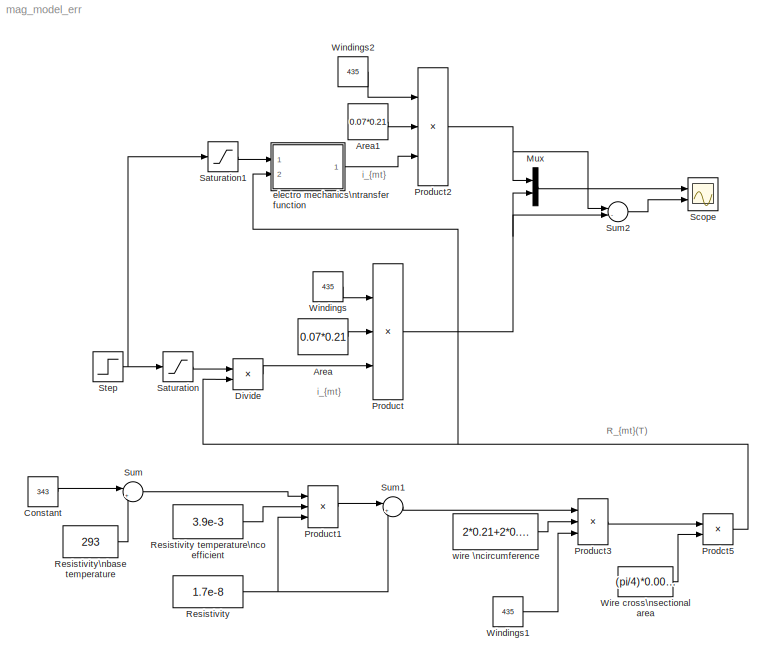
MODEL mag_model_err
KIND model
BLOCK [Constant] Area
  Value = 0.07*0.21
BLOCK [Constant] Area1
  Value = 0.07*0.21
BLOCK [Constant] Constant
  Value = 343
BLOCK [Product] Divide
  InputSameDT = off
  Inputs = */
  OutDataTypeMode = Inherit via internal rule
  OutScaling = 2^-10
  Ports = [2, 1]
  RndMeth = Floor
  SaturateOnIntegerOverflow = off
BLOCK [Mux] Mux
  DisplayOption = bar
  Inputs = 2
  Ports = [2, 1]
BLOCK [Product] Prodct5
  InputSameDT = off
  Inputs = */
  OutDataTypeMode = Inherit via internal rule
  Ports = [2, 1]
  SaturateOnIntegerOverflow = off
BLOCK [Product] Product
  InputSameDT = off
  Inputs = 3
  OutDataTypeMode = Inherit via internal rule
  Ports = [3, 1]
  SaturateOnIntegerOverflow = off
BLOCK [Product] Product1
  InputSameDT = off
  Inputs = 3
  OutDataTypeMode = Inherit via internal rule
  Ports = [3, 1]
  SaturateOnIntegerOverflow = off
BLOCK [Product] Product2
  InputSameDT = off
  Inputs = 3
  OutDataTypeMode = Inherit via internal rule
  Ports = [3, 1]
  SaturateOnIntegerOverflow = off
BLOCK [Product] Product3
  InputSameDT = off
  Inputs = 3
  OutDataTypeMode = Inherit via internal rule
  Ports = [3, 1]
  SaturateOnIntegerOverflow = off
BLOCK [Constant] Resistivity
  Value = 1.7e-8
BLOCK [Constant] Resistivity temperature\ncoefficient
  Value = 3.9e-3
BLOCK [Constant] Resistivity\nbase temperature
  Value = 293
BLOCK [Saturate] Saturation
  LowerLimit = -5
  UpperLimit = 5
BLOCK [Saturate] Saturation1
  LowerLimit = -5
  UpperLimit = 5
BLOCK [Scope] Scope
  DataFormat = StructureWithTime
  LimitDataPoints = off
  NumInputPorts = 2
  Ports = [2]
  SaveName = mag_induct_err
  SaveToWorkspace = on
  YMax = 5~5
  YMin = -5~-5
  ZoomMode = xonly
BLOCK [Step] Step
  After = 5
  SampleTime = 0
BLOCK [Sum] Sum
  IconShape = round
  InputSameDT = off
  Inputs = |+-
  OutDataTypeMode = Inherit via internal rule
  Ports = [2, 1]
  SaturateOnIntegerOverflow = off
BLOCK [Sum] Sum1
  IconShape = round
  InputSameDT = off
  Inputs = |++
  OutDataTypeMode = Inherit via internal rule
  Ports = [2, 1]
  SaturateOnIntegerOverflow = off
BLOCK [Sum] Sum2
  IconShape = round
  InputSameDT = off
  Inputs = |-+
  OutDataTypeMode = Inherit via internal rule
  Ports = [2, 1]
  SaturateOnIntegerOverflow = off
BLOCK [Constant] Windings
  Value = 435
BLOCK [Constant] Windings1
  Value = 435
BLOCK [Constant] Windings2
  Value = 435
BLOCK [Constant] Wire cross\nsectional area
  Value = (pi/4)*0.0002^2
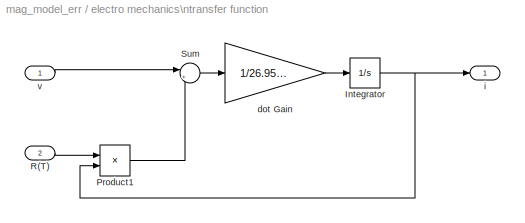
BLOCK [SubSystem] electro mechanics\ntransfer function
  AncestorBlock = components_lib/Actuator Emulation/Magnetorquer/electro mechanics\ntransfer function
  MinAlgLoopOccurrences = off
  Ports = [2, 1]
  RTWSystemCode = Auto
  TreatAsAtomicUnit = off
BLOCK [Integrator] electro mechanics\ntransfer function/Integrator
  IgnoreLimit = off
  Ports = [1, 1]
BLOCK [Product] electro mechanics\ntransfer function/Product1
  InputSameDT = off
  OutDataTypeMode = Inherit via internal rule
  Ports = [2, 1]
  SaturateOnIntegerOverflow = off
BLOCK [Inport] electro mechanics\ntransfer function/R(T)
  IconDisplay = Port number
  LatchInput = off
  Port = 2
BLOCK [Sum] electro mechanics\ntransfer function/Sum
  IconShape = round
  InputSameDT = off
  Inputs = |+-
  OutDataTypeMode = Inherit via internal rule
  Ports = [2, 1]
  SaturateOnIntegerOverflow = off
BLOCK [Gain] electro mechanics\ntransfer function/dot Gain
  Gain = 1/26.956e-3
  OutDataTypeMode = Inherit via internal rule
  ParameterDataTypeMode = Inherit via internal rule
  SaturateOnIntegerOverflow = off
BLOCK [Outport] electro mechanics\ntransfer function/i
  BusOutputAsStruct = off
  IconDisplay = Port number
BLOCK [Inport] electro mechanics\ntransfer function/v
  IconDisplay = Port number
  LatchInput = off
  Port = 1
BLOCK [Constant] wire \ncircumference
  Value = 2*0.21+2*0.07
ANNOTATION (root): R_{mt}(T)
ANNOTATION (root): i_{mt}
LINE Area1:1 -> Product2:2
LINE Area:1 -> Product:2
LINE Constant:1 -> Sum:1
LINE Divide:1 -> Product:3
LINE Mux:1 -> Scope:1
NET Prodct5:1 -> Divide:2, electro mechanics\ntransfer function:2
LINE Product1:1 -> Sum1:1
NET Product2:1 -> Mux:1, Sum2:1
LINE Product3:1 -> Prodct5:1
NET Product:1 -> Mux:2, Sum2:2
LINE Resistivity temperature\ncoefficient:1 -> Product1:2
NET Resistivity:1 -> Product1:3, Sum1:2
LINE Resistivity\nbase temperature:1 -> Sum:2
LINE Saturation1:1 -> electro mechanics\ntransfer function:1
LINE Saturation:1 -> Divide:1
NET Step:1 -> Saturation1:1, Saturation:1
LINE Sum1:1 -> Product3:1
LINE Sum2:1 -> Scope:2
LINE Sum:1 -> Product1:1
LINE Windings1:1 -> Product3:3
LINE Windings2:1 -> Product2:1
LINE Windings:1 -> Product:1
LINE Wire cross\nsectional area:1 -> Prodct5:2
NET electro mechanics\ntransfer function/Integrator:1 -> electro mechanics\ntransfer function/Product1:2, electro mechanics\ntransfer function/i:1
LINE electro mechanics\ntransfer function/Product1:1 -> electro mechanics\ntransfer function/Sum:2
LINE electro mechanics\ntransfer function/R(T):1 -> electro mechanics\ntransfer function/Product1:1
LINE electro mechanics\ntransfer function/Sum:1 -> electro mechanics\ntransfer function/dot Gain:1
LINE electro mechanics\ntransfer function/dot Gain:1 -> electro mechanics\ntransfer function/Integrator:1
LINE electro mechanics\ntransfer function/v:1 -> electro mechanics\ntransfer function/Sum:1
LINE electro mechanics\ntransfer function:1 -> Product2:3
LINE wire \ncircumference:1 -> Product3:2
note: NET lines group one-source signal fan-out (src -> all destinations, sorted); 1:1 wires keep LINE
